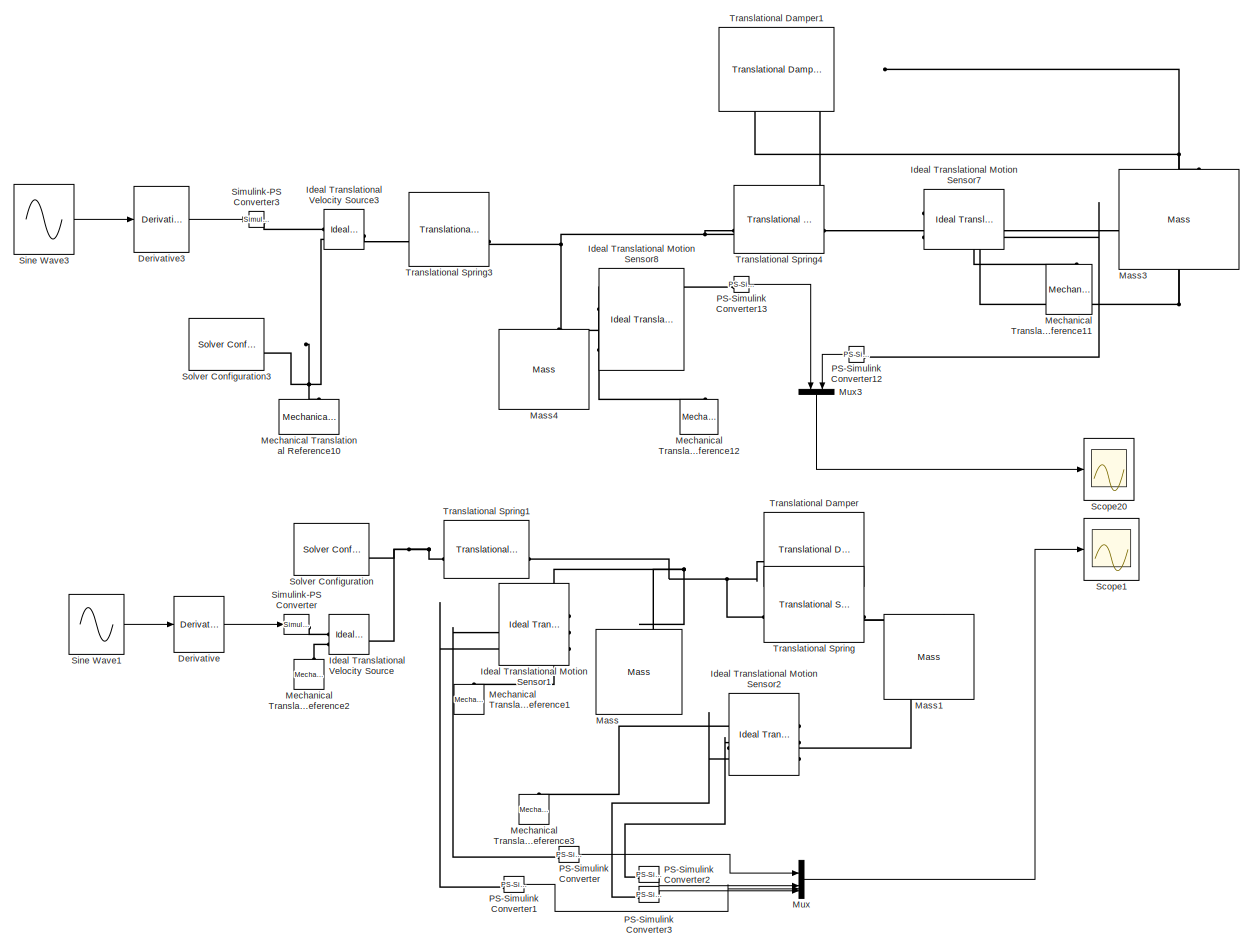
[diagram: root canvas - part 1/1, most of the canvas]
MODEL slx_57f9dcc3c736
KIND model
CONFIG AbsTol = auto
CONFIG EnableMultiTasking = off
CONFIG FixedStep = auto
CONFIG MaxStep = auto
CONFIG MinStep = auto
CONFIG RelTol = 1e-3
CONFIG SampleTimeConstraint = Unconstrained
CONFIG SolverName = VariableStepAuto
CONFIG StartTime = 0.0
CONFIG StopTime = 10.0
BLOCK [Derivative] Derivative
BLOCK [Derivative] Derivative3
BLOCK [Reference] Ideal Translational Motion Sensor1  REF=fl_lib/Mechanical/Mechanical Sensors/Ideal Translational
Motion Sensor
  NameLocation = top
  SourceBlock = fl_lib/Mechanical/Mechanical Sensors/Ideal Translational\nMotion Sensor
  SourceType = Ideal Translational\nMotion Sensor
BLOCK [Reference] Ideal Translational Motion Sensor2  REF=fl_lib/Mechanical/Mechanical Sensors/Ideal Translational
Motion Sensor
  NameLocation = top
  SourceBlock = fl_lib/Mechanical/Mechanical Sensors/Ideal Translational\nMotion Sensor
  SourceType = Ideal Translational\nMotion Sensor
BLOCK [Reference] Ideal Translational Motion Sensor7  REF=fl_lib/Mechanical/Mechanical Sensors/Ideal Translational
Motion Sensor
  NameLocation = top
  SourceBlock = fl_lib/Mechanical/Mechanical Sensors/Ideal Translational\nMotion Sensor
  SourceType = Ideal Translational\nMotion Sensor
BLOCK [Reference] Ideal Translational Motion Sensor8  REF=fl_lib/Mechanical/Mechanical Sensors/Ideal Translational
Motion Sensor
  NameLocation = top
  SourceBlock = fl_lib/Mechanical/Mechanical Sensors/Ideal Translational\nMotion Sensor
  SourceType = Ideal Translational\nMotion Sensor
BLOCK [Reference] Ideal Translational Velocity Source  REF=fl_lib/Mechanical/Mechanical Sources/Ideal Translational
Velocity Source
  SourceBlock = fl_lib/Mechanical/Mechanical Sources/Ideal Translational\nVelocity Source
  SourceType = Ideal Translational\nVelocity Source
BLOCK [Reference] Ideal Translational Velocity Source3  REF=fl_lib/Mechanical/Mechanical Sources/Ideal Translational
Velocity Source
  SourceBlock = fl_lib/Mechanical/Mechanical Sources/Ideal Translational\nVelocity Source
  SourceType = Ideal Translational\nVelocity Source
BLOCK [Reference] Mass  REF=fl_lib/Mechanical/Translational
Elements/Mass
  NameLocation = right
  SourceBlock = fl_lib/Mechanical/Translational\nElements/Mass
  SourceType = Mass
BLOCK [Reference] Mass1  REF=fl_lib/Mechanical/Translational
Elements/Mass
  NameLocation = right
  SourceBlock = fl_lib/Mechanical/Translational\nElements/Mass
  SourceType = Mass
BLOCK [Reference] Mass3  REF=fl_lib/Mechanical/Translational
Elements/Mass
  NameLocation = right
  SourceBlock = fl_lib/Mechanical/Translational\nElements/Mass
  SourceType = Mass
BLOCK [Reference] Mass4  REF=fl_lib/Mechanical/Translational
Elements/Mass
  NameLocation = right
  SourceBlock = fl_lib/Mechanical/Translational\nElements/Mass
  SourceType = Mass
BLOCK [Reference] Mechanical Translational Reference1  REF=fl_lib/Mechanical/Translational
Elements/Mechanical
Translational
Reference
  NameLocation = right
  SourceBlock = fl_lib/Mechanical/Translational\nElements/Mechanical\nTranslational\nReference
  SourceType = Mechanical\nTranslational\nReference
BLOCK [Reference] Mechanical Translational Reference10  REF=fl_lib/Mechanical/Translational
Elements/Mechanical
Translational
Reference
  NameLocation = right
  SourceBlock = fl_lib/Mechanical/Translational\nElements/Mechanical\nTranslational\nReference
  SourceType = Mechanical\nTranslational\nReference
BLOCK [Reference] Mechanical Translational Reference11  REF=fl_lib/Mechanical/Translational
Elements/Mechanical
Translational
Reference
  NameLocation = right
  SourceBlock = fl_lib/Mechanical/Translational\nElements/Mechanical\nTranslational\nReference
  SourceType = Mechanical\nTranslational\nReference
BLOCK [Reference] Mechanical Translational Reference12  REF=fl_lib/Mechanical/Translational
Elements/Mechanical
Translational
Reference
  NameLocation = right
  SourceBlock = fl_lib/Mechanical/Translational\nElements/Mechanical\nTranslational\nReference
  SourceType = Mechanical\nTranslational\nReference
BLOCK [Reference] Mechanical Translational Reference2  REF=fl_lib/Mechanical/Translational
Elements/Mechanical
Translational
Reference
  NameLocation = right
  SourceBlock = fl_lib/Mechanical/Translational\nElements/Mechanical\nTranslational\nReference
  SourceType = Mechanical\nTranslational\nReference
BLOCK [Reference] Mechanical Translational Reference3  REF=fl_lib/Mechanical/Translational
Elements/Mechanical
Translational
Reference
  NameLocation = right
  SourceBlock = fl_lib/Mechanical/Translational\nElements/Mechanical\nTranslational\nReference
  SourceType = Mechanical\nTranslational\nReference
BLOCK [Mux] Mux
  DisplayOption = bar
BLOCK [Mux] Mux3
  DisplayOption = bar
  Inputs = 2
  NameLocation = left
BLOCK [Reference] PS-Simulink Converter  REF=nesl_utility/PS-Simulink
Converter
  SourceBlock = nesl_utility/PS-Simulink\nConverter
  SourceType = PS-Simulink\nConverter
BLOCK [Reference] PS-Simulink Converter1  REF=nesl_utility/PS-Simulink
Converter
  SourceBlock = nesl_utility/PS-Simulink\nConverter
  SourceType = PS-Simulink\nConverter
BLOCK [Reference] PS-Simulink Converter12  REF=nesl_utility/PS-Simulink
Converter
  NameLocation = top
  SourceBlock = nesl_utility/PS-Simulink\nConverter
  SourceType = PS-Simulink\nConverter
BLOCK [Reference] PS-Simulink Converter13  REF=nesl_utility/PS-Simulink
Converter
  SourceBlock = nesl_utility/PS-Simulink\nConverter
  SourceType = PS-Simulink\nConverter
BLOCK [Reference] PS-Simulink Converter2  REF=nesl_utility/PS-Simulink
Converter
  SourceBlock = nesl_utility/PS-Simulink\nConverter
  SourceType = PS-Simulink\nConverter
BLOCK [Reference] PS-Simulink Converter3  REF=nesl_utility/PS-Simulink
Converter
  SourceBlock = nesl_utility/PS-Simulink\nConverter
  SourceType = PS-Simulink\nConverter
BLOCK [Scope] Scope1
  ActiveDisplayYMaximum = 1.2855
  ActiveDisplayYMinimum = -1.56946
  DataLoggingVariableName = ScopeData1
  Floating = off
  GraphicalSettings = {"Style":{"BackgroundColor":[0.12941176470588237,0.12941176470588237,0.12941176470588237],"AxesColor":[0.07058823529411765,0.07058823529411765,0.07058823529411765],"LabelsColor":[0.8509803921568627,0.8509803921568627,0.8509803921568627],"PreserveColors":false,"Visible":[true,true,false,false],"LineStyle":["-","-","-","-"],"LineWidth":[2,1,1.5,1.5],"BarWidth":[0.9,0.9,0.9,0.9],"LineColor":[[0.07843...<+2411ch>
  MultipleDisplayCache = [{"MaxYLimMag":1.56946,"MaxYLimReal":1.2855,"MinYLimMag":0,"MinYLimReal":-1.56946,"PlotAsMagnitudePhase":false,"ShowGrid":true,"ShowLegend":true,"Title":"%<SignalLabel>","YLabel":""}]
  NumInputPorts = 1
  ScopeFrameLocation = window
  ShowLegend = on
  WasSavedAsWebScope = on
  WindowPosition = [816.000000,112.000000,640.000000,450.000000,]
BLOCK [Scope] Scope20
  ActiveDisplayYMaximum = 0.080703384237666667
  ActiveDisplayYMinimum = -0.070090266945372376
  DataLoggingVariableName = ScopeData5
  Floating = off
  GraphicalSettings = {"Style":{"BackgroundColor":[0.12941176470588237,0.12941176470588237,0.12941176470588237],"AxesColor":[0.07058823529411765,0.07058823529411765,0.07058823529411765],"LabelsColor":[0.8509803921568627,0.8509803921568627,0.8509803921568627],"PreserveColors":false,"Visible":[true,true],"LineStyle":["-","-"],"LineWidth":[2,2],"BarWidth":[0.9,0.9],"LineColor":[[0,0,1],[1,0,0]],"LineFaceAlpha":[1,1],"Line...<+2094ch>
  MultipleDisplayCache = [{"MaxYLimMag":0.080703384237666667,"MaxYLimReal":0.080703384237666667,"MinYLimMag":0,"MinYLimReal":-0.070090266945372376,"PlotAsMagnitudePhase":false,"ShowGrid":true,"ShowLegend":true,"Title":"%<SignalLabel>","YLabel":""}]
  NumInputPorts = 1
  ScopeFrameLocation = window
  ShowLegend = on
  WasSavedAsWebScope = on
  WindowPosition = [228.000000,93.000000,534.000000,423.000000,]
BLOCK [Reference] Simulink-PS Converter  REF=nesl_utility/Simulink-PS
Converter
  SourceBlock = nesl_utility/Simulink-PS\nConverter
  SourceType = Simulink-PS\nConverter
BLOCK [Reference] Simulink-PS Converter3  REF=nesl_utility/Simulink-PS
Converter
  SourceBlock = nesl_utility/Simulink-PS\nConverter
  SourceType = Simulink-PS\nConverter
BLOCK [Sin] Sine Wave1
  Amplitude = 0.05
  Frequency = 20*pi
  SampleTime = 0
BLOCK [Sin] Sine Wave3
  Amplitude = 0.05
  Frequency = 0.5*pi
  SampleTime = 0
BLOCK [Reference] Solver Configuration  REF=nesl_utility/Solver
Configuration
  SourceBlock = nesl_utility/Solver\nConfiguration
  SourceType = Solver\nConfiguration
BLOCK [Reference] Solver Configuration3  REF=nesl_utility/Solver
Configuration
  SourceBlock = nesl_utility/Solver\nConfiguration
  SourceType = Solver\nConfiguration
BLOCK [Reference] Translational Damper  REF=fl_lib/Mechanical/Translational
Elements/Translational Damper
  SourceBlock = fl_lib/Mechanical/Translational\nElements/Translational Damper
  SourceType = Translational Damper
BLOCK [Reference] Translational Damper1  REF=fl_lib/Mechanical/Translational
Elements/Translational Damper
  NameLocation = top
  SourceBlock = fl_lib/Mechanical/Translational\nElements/Translational Damper
  SourceType = Translational Damper
BLOCK [Reference] Translational Spring  REF=fl_lib/Mechanical/Translational
Elements/Translational Spring
  SourceBlock = fl_lib/Mechanical/Translational\nElements/Translational Spring
  SourceType = Translational Spring
BLOCK [Reference] Translational Spring1  REF=fl_lib/Mechanical/Translational
Elements/Translational Spring
  SourceBlock = fl_lib/Mechanical/Translational\nElements/Translational Spring
  SourceType = Translational Spring
BLOCK [Reference] Translational Spring3   REF=fl_lib/Mechanical/Translational
Elements/Translational Spring
  NameLocation = top
  SourceBlock = fl_lib/Mechanical/Translational\nElements/Translational Spring
  SourceType = Translational Spring
BLOCK [Reference] Translational Spring4  REF=fl_lib/Mechanical/Translational
Elements/Translational Spring
  NameLocation = top
  SourceBlock = fl_lib/Mechanical/Translational\nElements/Translational Spring
  SourceType = Translational Spring
LINE Derivative3:1 -> Simulink-PS Converter3:1
LINE Derivative:1 -> Simulink-PS Converter:1
LINE Mux3:1 -> Scope20:1
LINE Mux:1 -> Scope1:1
LINE PS-Simulink Converter12:1 -> Mux3:2
LINE PS-Simulink Converter13:1 -> Mux3:1
LINE PS-Simulink Converter1:1 -> Mux:3
LINE PS-Simulink Converter2:1 -> Mux:2
LINE PS-Simulink Converter3:1 -> Mux:4
LINE PS-Simulink Converter:1 -> Mux:1
LINE Sine Wave1:1 -> Derivative:1
LINE Sine Wave3:1 -> Derivative3:1
PNET net1: Ideal Translational Motion Sensor1:LConn1 -- Mass:LConn1 -- Translational Damper:LConn1 -- Translational Spring1:RConn1 -- Translational Spring:LConn1
PLINE Ideal Translational Motion Sensor1:RConn1 -- Mechanical Translational Reference1:LConn1
PLINE Ideal Translational Motion Sensor1:RConn2 -- PS-Simulink Converter:LConn1
PLINE Ideal Translational Motion Sensor1:RConn3 -- PS-Simulink Converter1:LConn1
PNET net2: Ideal Translational Motion Sensor2:LConn1 -- Mass1:LConn1 -- Translational Damper:RConn1 -- Translational Spring:RConn1
PLINE Ideal Translational Motion Sensor2:RConn1 -- Mechanical Translational Reference3:LConn1
PLINE Ideal Translational Motion Sensor2:RConn2 -- PS-Simulink Converter2:LConn1
PLINE Ideal Translational Motion Sensor2:RConn3 -- PS-Simulink Converter3:LConn1
PNET net3: Ideal Translational Motion Sensor7:LConn1 -- Mass3:LConn1 -- Translational Damper1:LConn1 -- Translational Spring4:LConn1
PLINE Ideal Translational Motion Sensor7:RConn1 -- Mechanical Translational Reference11:LConn1
PLINE Ideal Translational Motion Sensor7:RConn3 -- PS-Simulink Converter12:LConn1
PNET net4: Ideal Translational Motion Sensor8:LConn1 -- Mass4:LConn1 -- Translational Damper1:RConn1 -- Translational Spring3 :LConn1 -- Translational Spring4:RConn1
PLINE Ideal Translational Motion Sensor8:RConn1 -- Mechanical Translational Reference12:LConn1
PLINE Ideal Translational Motion Sensor8:RConn3 -- PS-Simulink Converter13:LConn1
PLINE Ideal Translational Velocity Source3:LConn1 -- Translational Spring3 :RConn1
PLINE Ideal Translational Velocity Source3:RConn1 -- Simulink-PS Converter3:RConn1
PNET net5: Ideal Translational Velocity Source3:RConn2 -- Mechanical Translational Reference10:LConn1 -- Solver Configuration3:RConn1
PNET net6: Ideal Translational Velocity Source:LConn1 -- Solver Configuration:RConn1 -- Translational Spring1:LConn1
PLINE Ideal Translational Velocity Source:RConn1 -- Simulink-PS Converter:RConn1
PLINE Ideal Translational Velocity Source:RConn2 -- Mechanical Translational Reference2:LConn1
note: PNET lines group multi-terminal physical nets as a canonical sorted terminal list (undirected conserving connections); 2-terminal nets keep the pairwise PLINE form
